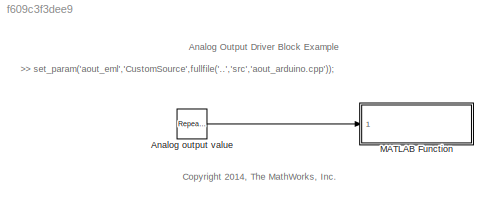
MODEL slx_f609c3f3dee9
KIND model
BLOCK [Reference] Analog output value  REF=simulink/Sources/Repeating
Sequence
Stair
  ConRadixGroup = Best Precision: Vector-wise
  LockScale = off
  OutDataType = fixdt(0,8)
  OutDataTypeStr = uint8
  OutMax = []
  OutMin = []
  OutScaling = 2^-12
  OutValues = [20:10:255 255:-10:1]
  OutputDataTypeScalingMode = uint8
  Ports = [0, 1]
  SourceBlock = simulink/Sources/Repeating\nSequence\nStair
  SourceType = Repeating Sequence Stair
  tsamp = 0.01
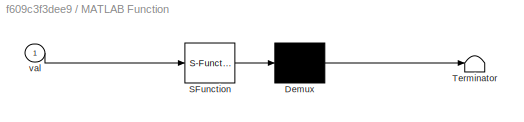
BLOCK [SubSystem] MATLAB Function
  ErrorFcn = Stateflow.Translate.translate
  PermitHierarchicalResolution = ExplicitOnly
  Ports = [1]
  RequestExecContextInheritance = off
  SFBlockType = MATLAB Function
  TreatAsAtomicUnit = on
BLOCK [Demux] MATLAB Function/ Demux 
  Outputs = 1
  Ports = [1, 1]
BLOCK [S-Function] MATLAB Function/ SFunction 
  EnableBusSupport = on
  FunctionName = sf_sfun
  Parameters = pin
  PortCounts = [1 1]
  Ports = [1, 1]
  Tag = Stateflow S-Function aout_eml 2
BLOCK [Terminator] MATLAB Function/ Terminator 
BLOCK [Inport] MATLAB Function/val
  IconDisplay = Port number
ANNOTATION (root): >> set_param('aout_eml','CustomSource',fullfile('..','src','aout_arduino.cpp'));
ANNOTATION (root): Analog Output Driver Block Example
ANNOTATION (root): <copyright redacted>
LINE Analog output value:1 -> MATLAB Function:1
